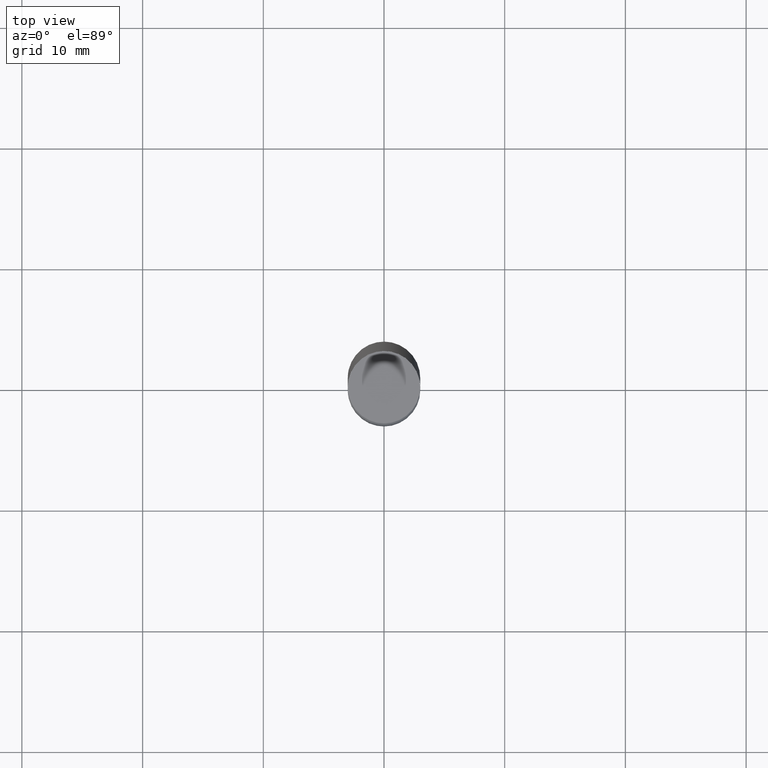
[diagram: clean part render]
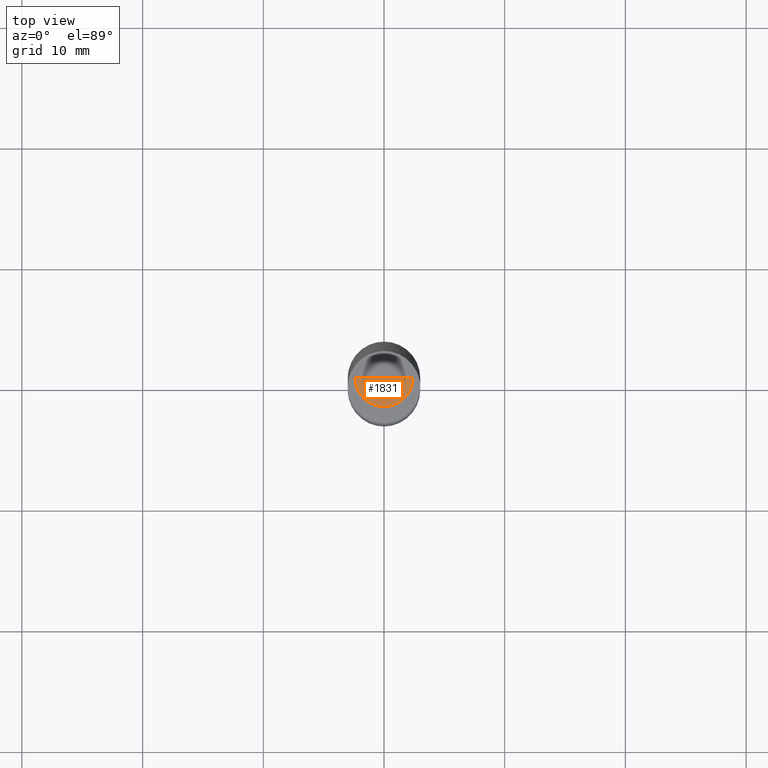
[diagram: same view with one face highlighted and labeled with its STEP entity id]
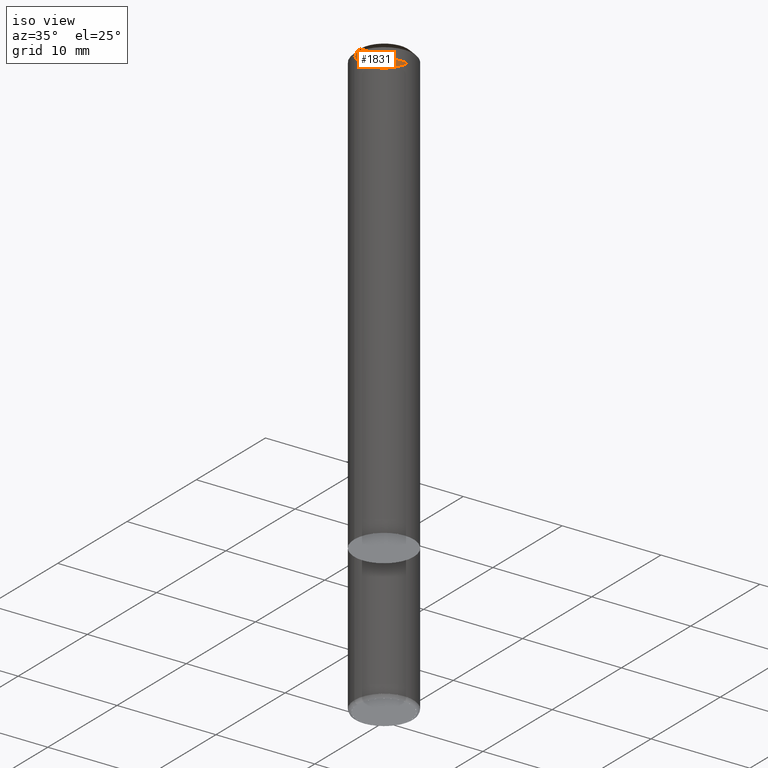
[diagram: same view with one face highlighted and labeled with its STEP entity id]
A machine part, top view. The second image highlights one B-rep face of the part: STEP entity #1831.
A second angle (iso view) of the same face is appended — the face is thin or edge-on in the first view.
In plain terms, the highlighted face is a freeform B-spline surface patch.
Its self-contained STEP definition (entity closure, byte-faithful):
#1519=CARTESIAN_POINT('',(2.4,0.0,45.0));
#1523=CARTESIAN_POINT('',(-2.4,0.0,45.0));
#1524=CARTESIAN_POINT('',(0.0,0.0,45.0));
#1528=CARTESIAN_POINT('',(-2.4,-2.4,45.0));
#1529=CARTESIAN_POINT('',(0.0,-2.4,45.0));
#1530=CARTESIAN_POINT('',(2.4,-2.4,45.0));
#1816=(
BOUNDED_SURFACE()
B_SPLINE_SURFACE(1,2,(
(#1523,#1528,#1529,#1530,#1519),
(#1524,#1524,#1524,#1524,#1524)
), .UNSPECIFIED.,.F.,.F.,.F.)
B_SPLINE_SURFACE_WITH_KNOTS((2,2),(3,2,3),(
0.0,1.0),(
0.0,0.5,1.0), .UNSPECIFIED.)
GEOMETRIC_REPRESENTATION_ITEM()
RATIONAL_B_SPLINE_SURFACE(((1.0,0.707106781187,1.0,0.707106781187,1.0),
(1.0,0.707106781187,1.0,0.707106781187,1.0)
))
REPRESENTATION_ITEM('')
SURFACE()
);
#1817=(
BOUNDED_CURVE()
B_SPLINE_CURVE(1,(#1524,#1519),.UNSPECIFIED.,.F.,.F.)
B_SPLINE_CURVE_WITH_KNOTS((2,2),
(0.0,1.0),.UNSPECIFIED.)
CURVE()
GEOMETRIC_REPRESENTATION_ITEM()
RATIONAL_B_SPLINE_CURVE((1.0,1.0))
REPRESENTATION_ITEM('')
);
#1818=(
BOUNDED_CURVE()
B_SPLINE_CURVE(2,(#1519,#1530,#1529,#1528,#1523),.UNSPECIFIED.,.F.,.F.)
B_SPLINE_CURVE_WITH_KNOTS((3,2,3),
(0.0,0.5,1.0),.UNSPECIFIED.)
CURVE()
GEOMETRIC_REPRESENTATION_ITEM()
RATIONAL_B_SPLINE_CURVE((1.0,0.707106781187,1.0,0.707106781187,1.0))
REPRESENTATION_ITEM('')
);
#1819=(
BOUNDED_CURVE()
B_SPLINE_CURVE(1,(#1523,#1524),.UNSPECIFIED.,.F.,.F.)
B_SPLINE_CURVE_WITH_KNOTS((2,2),
(0.0,1.0),.UNSPECIFIED.)
CURVE()
GEOMETRIC_REPRESENTATION_ITEM()
RATIONAL_B_SPLINE_CURVE((1.0,1.0))
REPRESENTATION_ITEM('')
);
#1820=VERTEX_POINT('',#1519);
#1821=VERTEX_POINT('',#1523);
#1822=VERTEX_POINT('',#1524);
#1823=EDGE_CURVE('',#1822,#1820,#1817,.T.);
#1824=EDGE_CURVE('',#1820,#1821,#1818,.T.);
#1825=EDGE_CURVE('',#1821,#1822,#1819,.T.);
#1826=ORIENTED_EDGE('',*,*,#1823,.T.);
#1827=ORIENTED_EDGE('',*,*,#1824,.T.);
#1828=ORIENTED_EDGE('',*,*,#1825,.T.);
#1829=EDGE_LOOP('',(#1826,#1827,#1828));
#1830=FACE_OUTER_BOUND('',#1829,.T.);
#1831=ADVANCED_FACE('',(#1830),#1816,.T.);